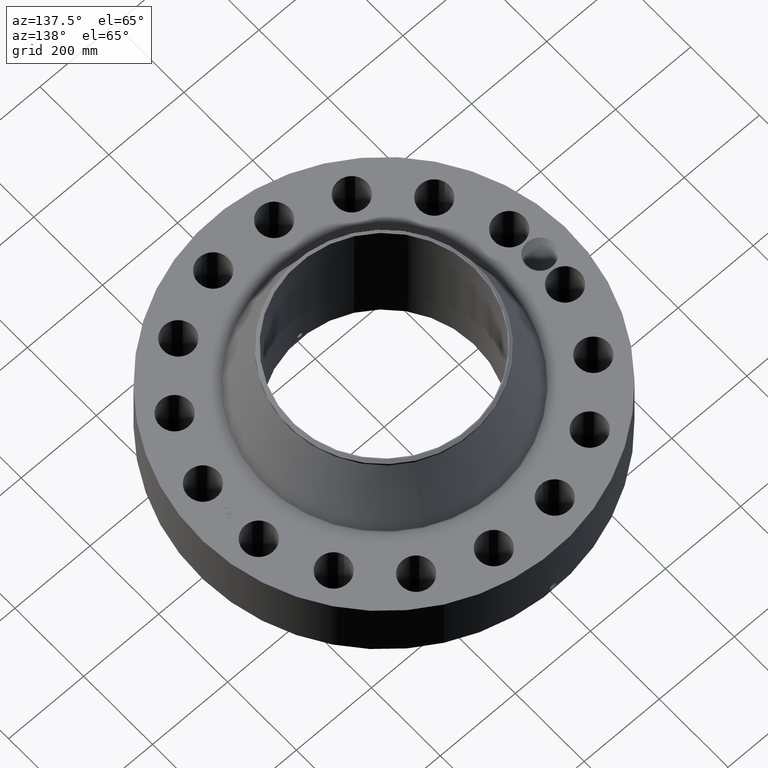
[diagram: clean part render]
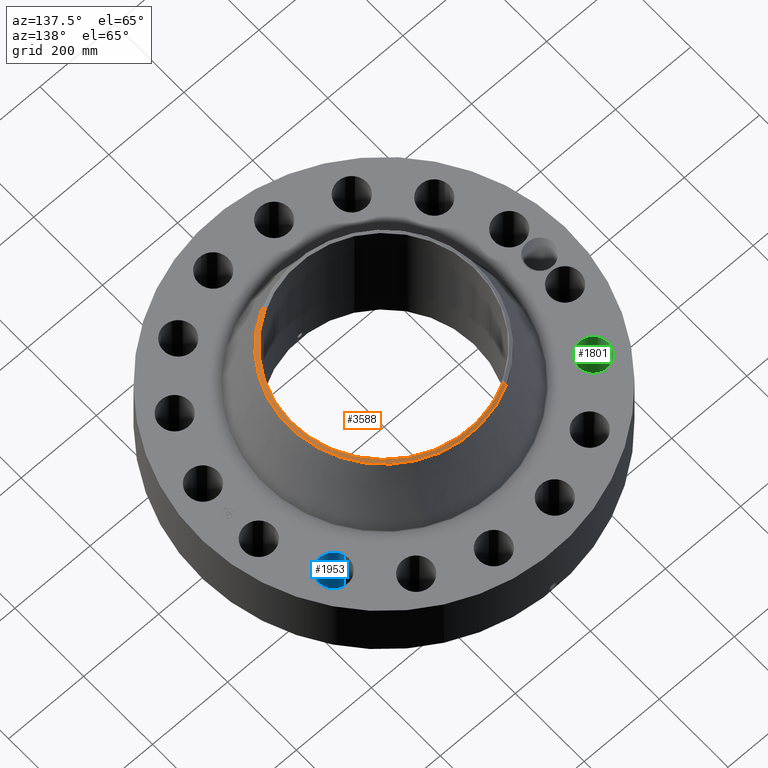
[diagram: same view with three faces highlighted in distinct colors, each labeled with its STEP entity id]
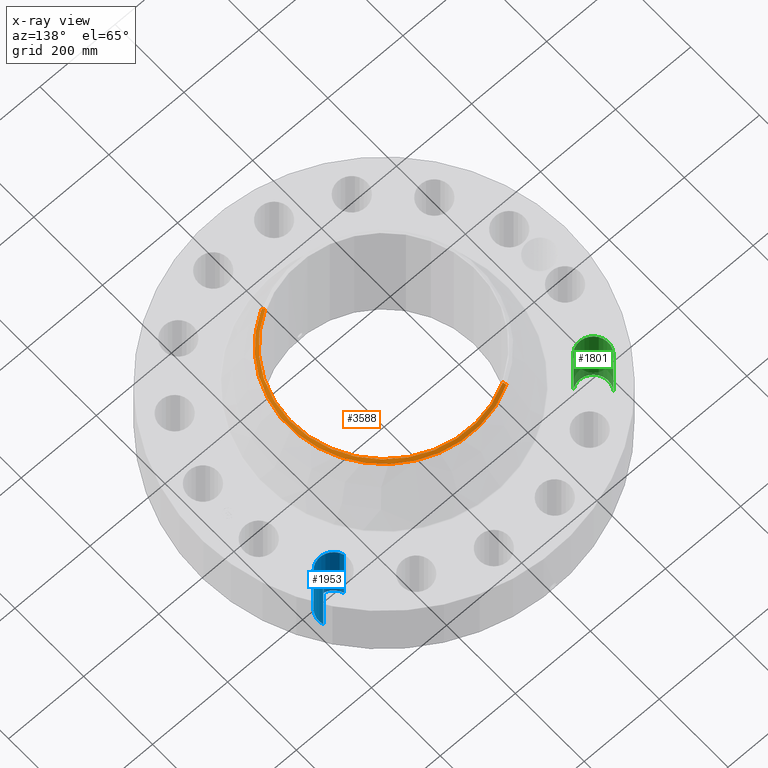
[diagram: x-ray of the same camera — body ghosted, the three highlighted faces saturated]
A machine part, auxiliary view with three faces highlighted in distinct colors.
The next image is the same camera in x-ray (body ghosted, the three faces saturated) — at least one of them is partly hidden behind the body in this view.
Their STEP definitions:

[orange] entity #3588 — the highlighted conical surface has half-angle 52.5 deg.
#2700=AXIS2_PLACEMENT_3D('Circle Axis2P3D',#2698,#2699,$) ;
#3533=AXIS2_PLACEMENT_3D('Cone Axis2P3D',#3530,#3531,#3532) ;
#3571=AXIS2_PLACEMENT_3D('Circle Axis2P3D',#3569,#3570,$) ;
#3578=AXIS2_PLACEMENT_3D('Circle Axis2P3D',#3576,#3577,$) ;
#2698=CARTESIAN_POINT('Axis2P3D Location',(0.,0.,14.2500000001)) ;
#2702=CARTESIAN_POINT('Vertex',(4.65222085149,-8.51583314735,14.2500000001)) ;
#2704=CARTESIAN_POINT('Vertex',(-4.65222085149,8.51583314735,14.2500000001)) ;
#3530=CARTESIAN_POINT('Axis2P3D Location',(0.,0.,14.2500000001)) ;
#3535=CARTESIAN_POINT('Line Origine',(4.72323811878,-8.64582938315,14.1363359137)) ;
#3539=CARTESIAN_POINT('Vertex',(4.79425538606,-8.77582561894,14.0226718274)) ;
#3542=CARTESIAN_POINT('Line Origine',(-4.72323811878,8.64582938315,14.1363359137)) ;
#3546=CARTESIAN_POINT('Vertex',(-4.79425538606,8.77582561894,14.0226718274)) ;
#3569=CARTESIAN_POINT('Axis2P3D Location',(0.,0.,14.0226718274)) ;
#3573=CARTESIAN_POINT('Vertex',(4.79425538606,8.77582561894,14.0226718274)) ;
#3576=CARTESIAN_POINT('Axis2P3D Location',(0.,0.,14.0226718274)) ;
#2699=DIRECTION('Axis2P3D Direction',(0.,0.,-0.0393700787402)) ;
#3531=DIRECTION('Axis2P3D Direction',(-0.,-0.,-0.0393700787402)) ;
#3532=DIRECTION('Axis2P3D XDirection',(-0.0188750212049,0.0345504945626,0.)) ;
#3536=DIRECTION('Vector Direction',(0.014974561121,-0.02741075027,-0.023966985394)) ;
#3543=DIRECTION('Vector Direction',(-0.014974561121,0.02741075027,-0.023966985394)) ;
#3570=DIRECTION('Axis2P3D Direction',(0.,0.,-0.0393700787402)) ;
#3577=DIRECTION('Axis2P3D Direction',(0.,0.,-0.0393700787402)) ;
#3537=VECTOR('Line Direction',#3536,0.0393700787402) ;
#3544=VECTOR('Line Direction',#3543,0.0393700787402) ;
#3582=ORIENTED_EDGE('',*,*,#3548,.F.) ;
#3583=ORIENTED_EDGE('',*,*,#2706,.F.) ;
#3584=ORIENTED_EDGE('',*,*,#3541,.T.) ;
#3585=ORIENTED_EDGE('',*,*,#3575,.T.) ;
#3586=ORIENTED_EDGE('',*,*,#3580,.F.) ;
#3588=ADVANCED_FACE('PartBody',(#3587),#3534,.T.) ;
#2701=CIRCLE('generated circle',#2700,9.70374015752) ;
#3572=CIRCLE('generated circle',#3571,10.) ;
#3579=CIRCLE('generated circle',#3578,10.) ;
#3534=CONICAL_SURFACE('Cone',#3533,9.70374015752,0.916297857297) ;
#2706=EDGE_CURVE('',#2703,#2705,#2701,.F.) ;
#3541=EDGE_CURVE('',#2703,#3540,#3538,.T.) ;
#3548=EDGE_CURVE('',#2705,#3547,#3545,.T.) ;
#3575=EDGE_CURVE('',#3540,#3574,#3572,.F.) ;
#3580=EDGE_CURVE('',#3547,#3574,#3579,.T.) ;
#3581=EDGE_LOOP('',(#3582,#3583,#3584,#3585,#3586)) ;
#3587=FACE_OUTER_BOUND('',#3581,.T.) ;
#3538=LINE('Line',#3535,#3537) ;
#3545=LINE('Line',#3542,#3544) ;
#2703=VERTEX_POINT('',#2702) ;
#2705=VERTEX_POINT('',#2704) ;
#3540=VERTEX_POINT('',#3539) ;
#3547=VERTEX_POINT('',#3546) ;
#3574=VERTEX_POINT('',#3573) ;

[blue] entity #1953 — the highlighted cylindrical surface (edge-blend (fillet) strip) has radius 39.624 mm, axis along (0, 0, -1).
#521=AXIS2_PLACEMENT_3D('Circle Axis2P3D',#519,#520,$) ;
#991=AXIS2_PLACEMENT_3D('Circle Axis2P3D',#989,#990,$) ;
#1928=AXIS2_PLACEMENT_3D('Cylinder Axis2P3D',#1925,#1926,#1927) ;
#514=CARTESIAN_POINT('Vertex',(12.1184174787,8.65826089715,0.250000000001)) ;
#516=CARTESIAN_POINT('Vertex',(15.1122123243,9.53666423432,0.250000000001)) ;
#519=CARTESIAN_POINT('Axis2P3D Location',(13.6153149015,9.09746256573,0.250000000001)) ;
#989=CARTESIAN_POINT('Axis2P3D Location',(13.6153149015,9.09746256573,7.25000000003)) ;
#993=CARTESIAN_POINT('Vertex',(15.1122123243,9.53666423432,7.25000000003)) ;
#995=CARTESIAN_POINT('Vertex',(12.1184174787,8.65826089715,7.25000000003)) ;
#1925=CARTESIAN_POINT('Axis2P3D Location',(13.6153149015,9.09746256573,7.24606299215)) ;
#1930=CARTESIAN_POINT('Line Origine',(12.1184174787,8.65826089715,3.75000000002)) ;
#1935=CARTESIAN_POINT('Line Origine',(15.1122123243,9.53666423432,3.75000000002)) ;
#520=DIRECTION('Axis2P3D Direction',(0.,0.,-0.0393700787402)) ;
#990=DIRECTION('Axis2P3D Direction',(0.,0.,-0.0393700787402)) ;
#1926=DIRECTION('Axis2P3D Direction',(0.,0.,-0.0393700787402)) ;
#1927=DIRECTION('Axis2P3D XDirection',(0.0377775444876,0.0110842335096,0.)) ;
#1931=DIRECTION('Vector Direction',(0.,0.,-0.0393700787402)) ;
#1936=DIRECTION('Vector Direction',(0.,0.,-0.0393700787402)) ;
#1932=VECTOR('Line Direction',#1931,0.0393700787402) ;
#1937=VECTOR('Line Direction',#1936,0.0393700787402) ;
#1948=ORIENTED_EDGE('',*,*,#1939,.F.) ;
#1949=ORIENTED_EDGE('',*,*,#523,.T.) ;
#1950=ORIENTED_EDGE('',*,*,#1934,.T.) ;
#1951=ORIENTED_EDGE('',*,*,#997,.F.) ;
#1953=ADVANCED_FACE('PartBody',(#1952),#1929,.F.) ;
#522=CIRCLE('generated circle',#521,1.56000000001) ;
#992=CIRCLE('generated circle',#991,1.56000000001) ;
#1929=CYLINDRICAL_SURFACE('generated cylinder',#1928,1.56000000001) ;
#523=EDGE_CURVE('',#517,#515,#522,.T.) ;
#997=EDGE_CURVE('',#994,#996,#992,.T.) ;
#1934=EDGE_CURVE('',#515,#996,#1933,.F.) ;
#1939=EDGE_CURVE('',#517,#994,#1938,.F.) ;
#1947=EDGE_LOOP('',(#1948,#1949,#1950,#1951)) ;
#1952=FACE_OUTER_BOUND('',#1947,.T.) ;
#1933=LINE('Line',#1930,#1932) ;
#1938=LINE('Line',#1935,#1937) ;
#515=VERTEX_POINT('',#514) ;
#517=VERTEX_POINT('',#516) ;
#994=VERTEX_POINT('',#993) ;
#996=VERTEX_POINT('',#995) ;

[green] entity #1801 — the highlighted cylindrical surface (edge-blend (fillet) strip) has radius 39.624 mm, axis along (0, 0, -1).
#422=AXIS2_PLACEMENT_3D('Circle Axis2P3D',#420,#421,$) ;
#910=AXIS2_PLACEMENT_3D('Circle Axis2P3D',#908,#909,$) ;
#1783=AXIS2_PLACEMENT_3D('Cylinder Axis2P3D',#1780,#1781,#1782) ;
#420=CARTESIAN_POINT('Axis2P3D Location',(-13.6153149015,9.09746256573,0.250000000001)) ;
#424=CARTESIAN_POINT('Vertex',(-12.6367076256,7.88258487659,0.250000000001)) ;
#426=CARTESIAN_POINT('Vertex',(-14.5939221774,10.3123402549,0.250000000001)) ;
#903=CARTESIAN_POINT('Vertex',(-14.5939221774,10.3123402549,7.25000000003)) ;
#905=CARTESIAN_POINT('Vertex',(-12.6367076256,7.88258487659,7.25000000003)) ;
#908=CARTESIAN_POINT('Axis2P3D Location',(-13.6153149015,9.09746256573,7.25000000003)) ;
#1780=CARTESIAN_POINT('Axis2P3D Location',(-13.6153149015,9.09746256573,7.24606299215)) ;
#1785=CARTESIAN_POINT('Line Origine',(-12.6367076256,7.88258487659,3.75000000002)) ;
#1790=CARTESIAN_POINT('Line Origine',(-14.5939221774,10.3123402549,3.75000000002)) ;
#421=DIRECTION('Axis2P3D Direction',(0.,0.,-0.0393700787402)) ;
#909=DIRECTION('Axis2P3D Direction',(0.,0.,-0.0393700787402)) ;
#1781=DIRECTION('Axis2P3D Direction',(0.,0.,-0.0393700787402)) ;
#1782=DIRECTION('Axis2P3D XDirection',(-0.0246973368639,0.030660147616,0.)) ;
#1786=DIRECTION('Vector Direction',(0.,0.,-0.0393700787402)) ;
#1791=DIRECTION('Vector Direction',(0.,0.,-0.0393700787402)) ;
#1787=VECTOR('Line Direction',#1786,0.0393700787402) ;
#1792=VECTOR('Line Direction',#1791,0.0393700787402) ;
#1796=ORIENTED_EDGE('',*,*,#1789,.F.) ;
#1797=ORIENTED_EDGE('',*,*,#428,.T.) ;
#1798=ORIENTED_EDGE('',*,*,#1794,.T.) ;
#1799=ORIENTED_EDGE('',*,*,#912,.F.) ;
#1801=ADVANCED_FACE('PartBody',(#1800),#1784,.F.) ;
#423=CIRCLE('generated circle',#422,1.56000000001) ;
#911=CIRCLE('generated circle',#910,1.56000000001) ;
#1784=CYLINDRICAL_SURFACE('generated cylinder',#1783,1.56000000001) ;
#428=EDGE_CURVE('',#425,#427,#423,.T.) ;
#912=EDGE_CURVE('',#906,#904,#911,.T.) ;
#1789=EDGE_CURVE('',#425,#906,#1788,.F.) ;
#1794=EDGE_CURVE('',#427,#904,#1793,.F.) ;
#1795=EDGE_LOOP('',(#1796,#1797,#1798,#1799)) ;
#1800=FACE_OUTER_BOUND('',#1795,.T.) ;
#1788=LINE('Line',#1785,#1787) ;
#1793=LINE('Line',#1790,#1792) ;
#425=VERTEX_POINT('',#424) ;
#427=VERTEX_POINT('',#426) ;
#904=VERTEX_POINT('',#903) ;
#906=VERTEX_POINT('',#905) ;